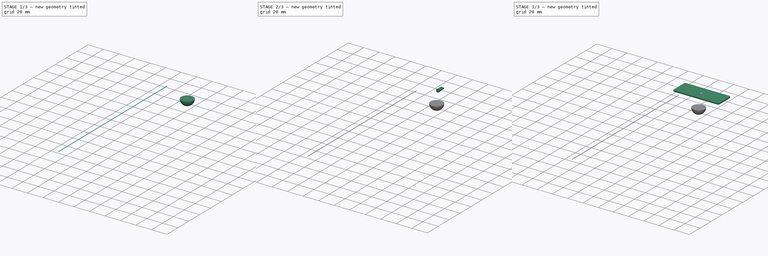
[diagram: build sequence overview — one tinted view per stage of 3, left to right]
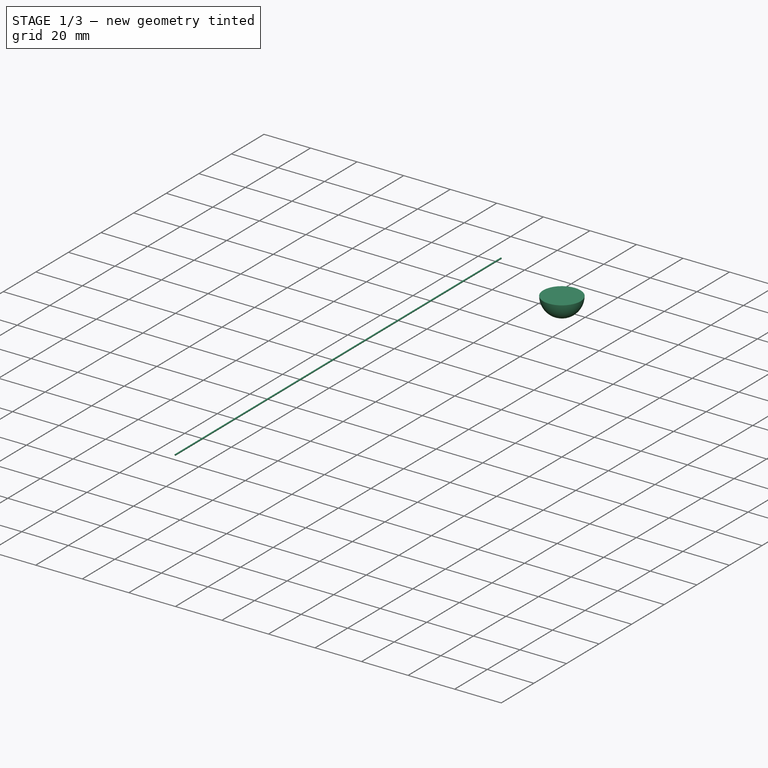
[diagram: stage 1 of 3 — iso view after this stage's code; geometry added in this stage tinted green]
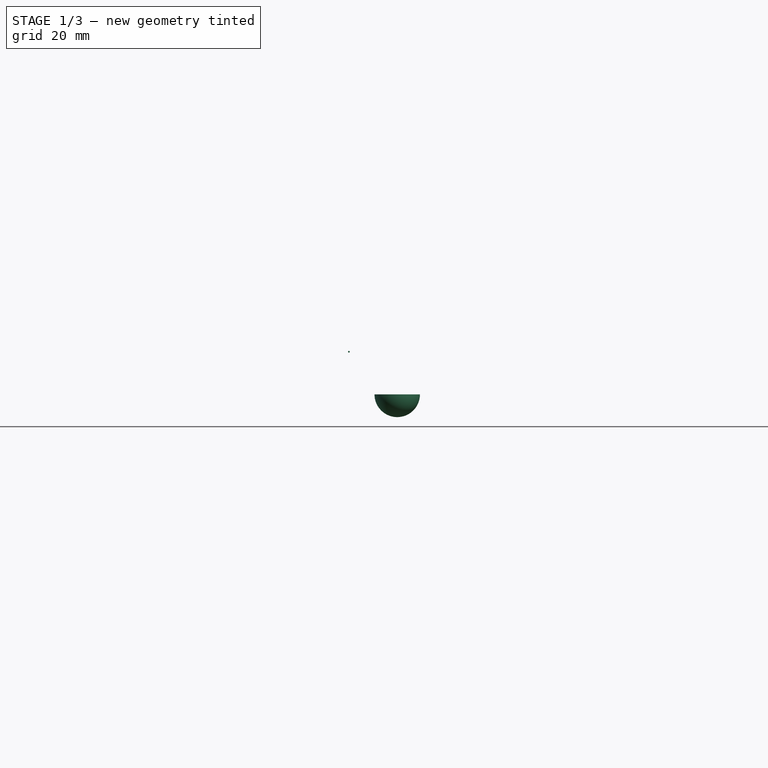
[diagram: stage 1 of 3 — front view after this stage's code; geometry added in this stage tinted green]
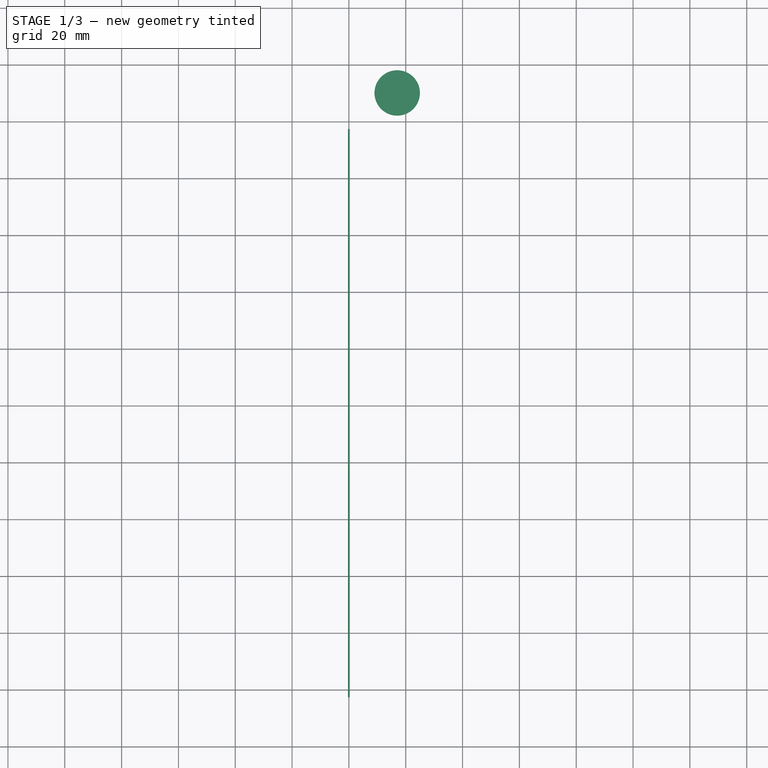
[diagram: stage 1 of 3 — top view after this stage's code; geometry added in this stage tinted green]
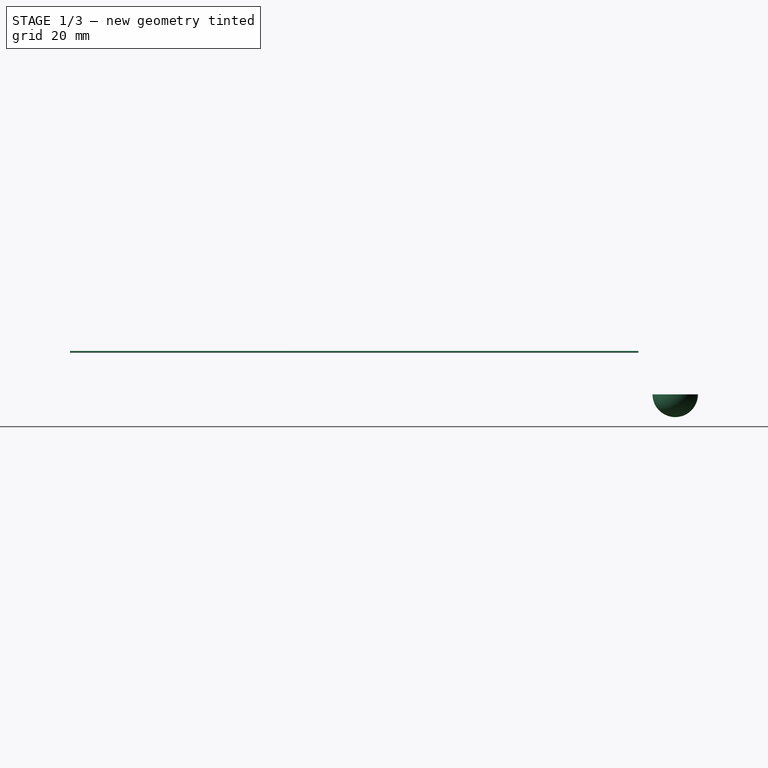
[diagram: stage 1 of 3 — right view after this stage's code; geometry added in this stage tinted green]
FCSTD DOCUMENT  (FreeCAD 0.18.4R)
Label: model
License: All rights reserved
LicenseURL: http://en.wikipedia.org/wiki/All_rights_reserved
objects: Part::Feature×8, Sketcher::SketchObject×5, PartDesign::Pocket×2, PartDesign::Body×2, PartDesign::Pad×2, PartDesign::FeatureBase×1, Part::Sphere×1, Image::ImagePlane×1, Part::Cylinder×1
note: 26 computed .brp shape members not serialized (recipe doc carries the construction recipe); baked Part::Feature solids carry a one-line shape summary decoded from their .brp

FEATURE [PartDesign::Body] Body001
  Group = -> [Sketch002,Pad,Sketch003,Pad001,Sketch004,Pocket001]
  Origin = -> Origin001
  Placement = pos=(0,48,6) rot=(0,0,1;0rad)
  Tip = -> Pocket001
FEATURE [Part::Sphere] Sphere
  Angle1 = -90
  Angle2 = 0
  Angle3 = 360
  AttacherType = Attacher::AttachEngine3D
  Placement = pos=(17,-30,0) rot=(0,0,1;0rad)
  Radius = 8
FEATURE [Image::ImagePlane] ImagePlane
  Placement = pos=(-3.3e-15,15,2) rot=(0.707107,0.707107,0;3.14159rad)
  XSize = 47
  YSize = 23
FEATURE [Part::Cylinder] Cylinder
  Angle = 360
  AttacherType = Attacher::AttachEngine3D
  Height = 200
  Placement = pos=(0,-43,15) rot=(1,0,0;1.5708rad)
  Radius = 0.3
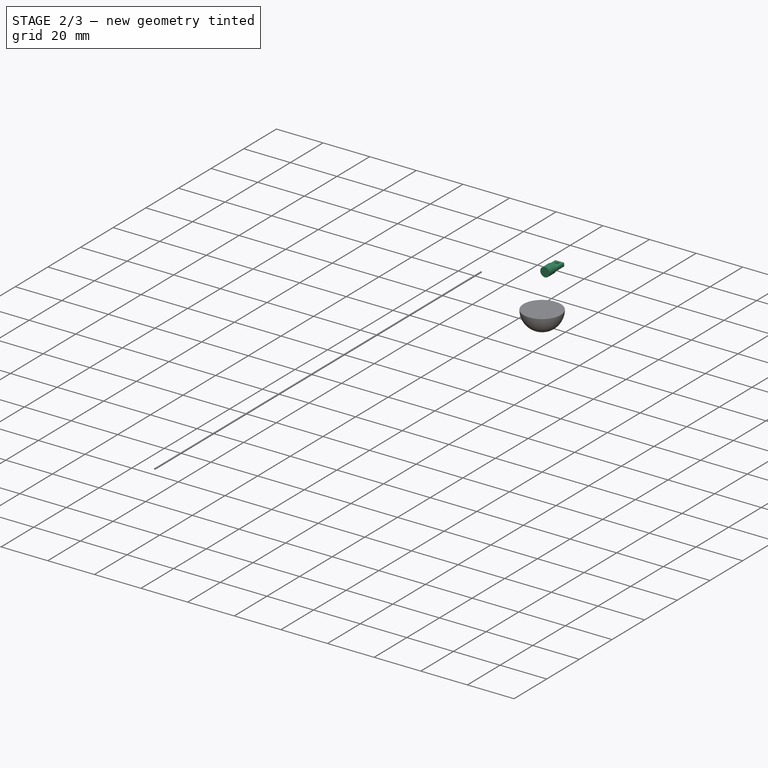
[diagram: stage 2 of 3 — iso view after this stage's code; geometry added in this stage tinted green]
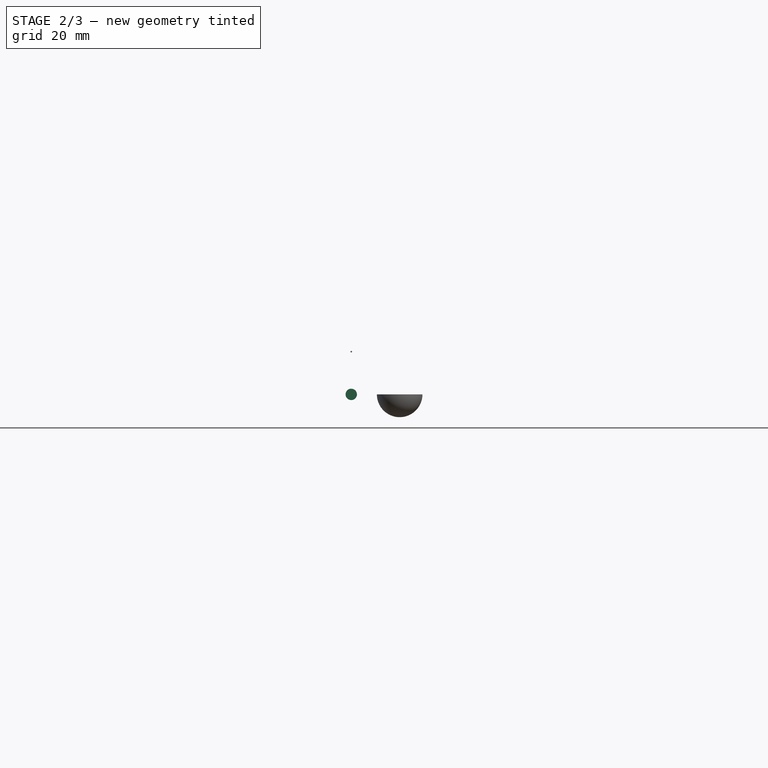
[diagram: stage 2 of 3 — front view after this stage's code; geometry added in this stage tinted green]
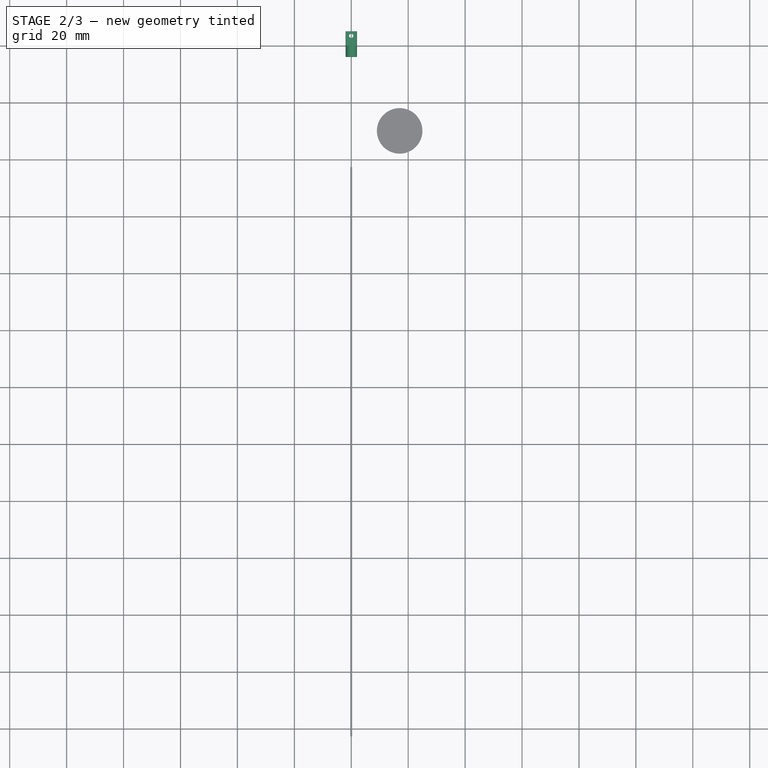
[diagram: stage 2 of 3 — top view after this stage's code; geometry added in this stage tinted green]
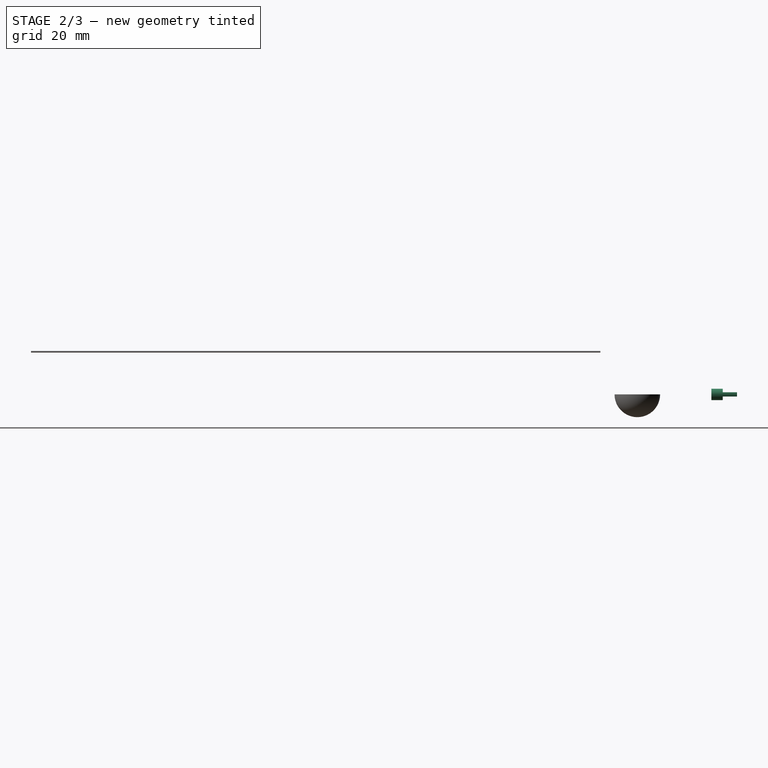
[diagram: stage 2 of 3 — right view after this stage's code; geometry added in this stage tinted green]
FEATURE [Sketcher::SketchObject] Sketch001
  MapMode = 5
  Placement = pos=(0,0,-0.85) rot=(1,0,0;3.14159rad)
  Support = -> [Pocket]
FEATURE [PartDesign::Body] Body
  BaseFeature = -> _593L002
  Group = -> [BaseFeature,Sketch,Pocket,Sketch001]
  Origin = -> Origin
  Placement = pos=(0,43,12) rot=(1,0,0;1.5708rad)
  Tip = -> Pocket
FEATURE [Sketcher::SketchObject] Sketch002
  MapMode = 5
  Placement = pos=(0,0,0) rot=(1,0,0;1.5708rad)
  Support = -> [XZ_Plane001]
  sketch-geometry (1):
    g0: Circle CenterX=0 CenterY=0 CenterZ=0 NormalX=0 NormalY=0 NormalZ=1 AngleXU=0 Radius=2
  constraints (2):
    c: Coincident(g0,g-1)
    c: Diameter(g0) = 4
FEATURE [PartDesign::Pad] Pad
  Length = 4
  Length2 = 100
  Placement = pos=(0,0,0) rot=(1,0,0;1.5708rad)
  Profile = -> Sketch002
  Refine = true
  Type = 0
FEATURE [Sketcher::SketchObject] Sketch003
  ExternalGeometry = -> [Pad]
  MapMode = 5
  Placement = pos=(0,0,0) rot=(-1,0,0;1.5708rad)
  Support = -> [Pad]
  sketch-geometry (4):
    g0: LineSegment StartX=-1.85405 StartY=0.75 StartZ=0 EndX=1.85405 EndY=0.75 EndZ=0
    g1: LineSegment StartX=1.85405 StartY=-0.75 StartZ=0 EndX=-1.85405 EndY=-0.75 EndZ=0
    g2: ArcOfCircle CenterX=0 CenterY=0 CenterZ=0 NormalX=0 NormalY=0 NormalZ=1 AngleXU=0 Radius=2 StartAngle=5.89879 EndAngle=6.66758
    g3: ArcOfCircle CenterX=0 CenterY=0 CenterZ=0 NormalX=0 NormalY=0 NormalZ=1 AngleXU=0 Radius=2 StartAngle=2.7572 EndAngle=3.52599
  constraints (11):
    c: Horizontal(g0)
    c: Horizontal(g1)
    c: PointOnObject(g0,g-3)
    c: Symmetric(g1,g0,g-1)
    c: DistanceY(g1,g0) = 1.5
    c: Coincident(g2,g-1)
    c: Coincident(g2,g0)
    c: Coincident(g2,g1)
    c: Coincident(g3,g2)
    c: Coincident(g3,g0)
    c: Coincident(g3,g1)
FEATURE [PartDesign::Pad] Pad001
  BaseFeature = -> Pad
  Length = 5
  Length2 = 100
  Placement = pos=(0,0,0) rot=(1,0,0;1.5708rad)
  Profile = -> Sketch003
  Refine = true
  Type = 0
FEATURE [Sketcher::SketchObject] Sketch004
  ExternalGeometry = -> [Pad001]
  MapMode = 5
  Placement = pos=(0,-9e-16,-0.75) rot=(1,0,0;3.14159rad)
  Support = -> [Pad001]
  sketch-geometry (1):
    g0: Circle CenterX=0 CenterY=-3.4 CenterZ=0 NormalX=0 NormalY=0 NormalZ=1 AngleXU=0 Radius=0.75
  constraints (3):
    c: PointOnObject(g0,g-2)
    c: Diameter(g0) = 1.5
    c: DistanceY(g-3,g0) = 1.6
FEATURE [PartDesign::Pocket] Pocket001
  BaseFeature = -> Pad001
  Length = 5
  Length2 = 100
  Placement = pos=(0,0,0) rot=(1,0,0;1.5708rad)
  Profile = -> Sketch004
  Refine = true
  Type = 0
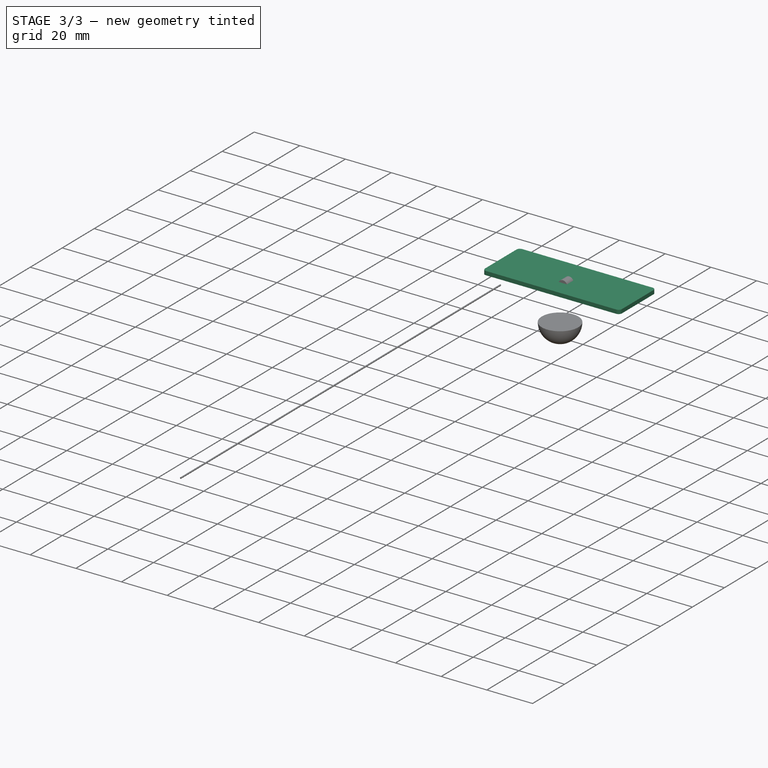
[diagram: stage 3 of 3 — iso view after this stage's code; geometry added in this stage tinted green]
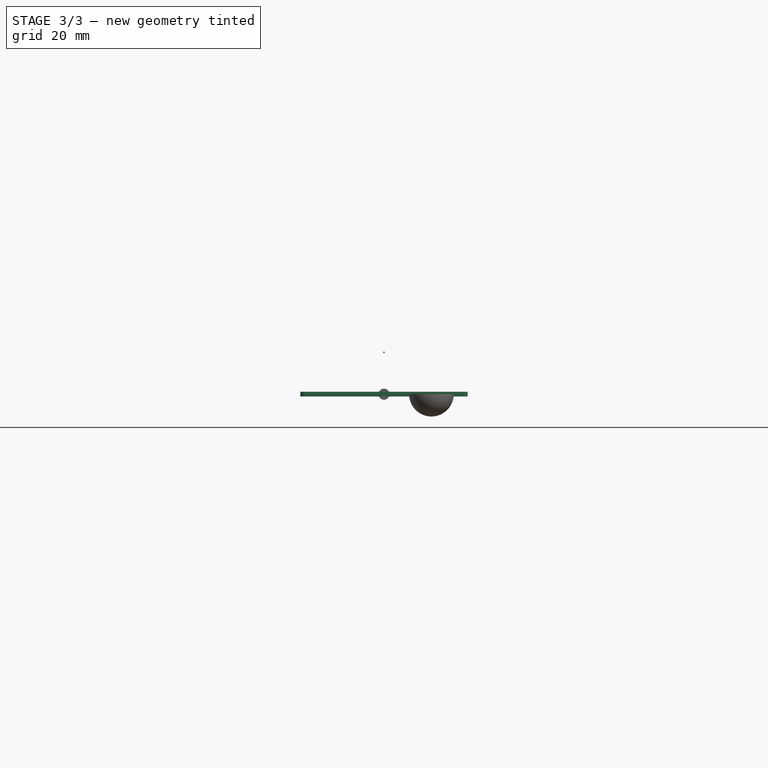
[diagram: stage 3 of 3 — front view after this stage's code; geometry added in this stage tinted green]
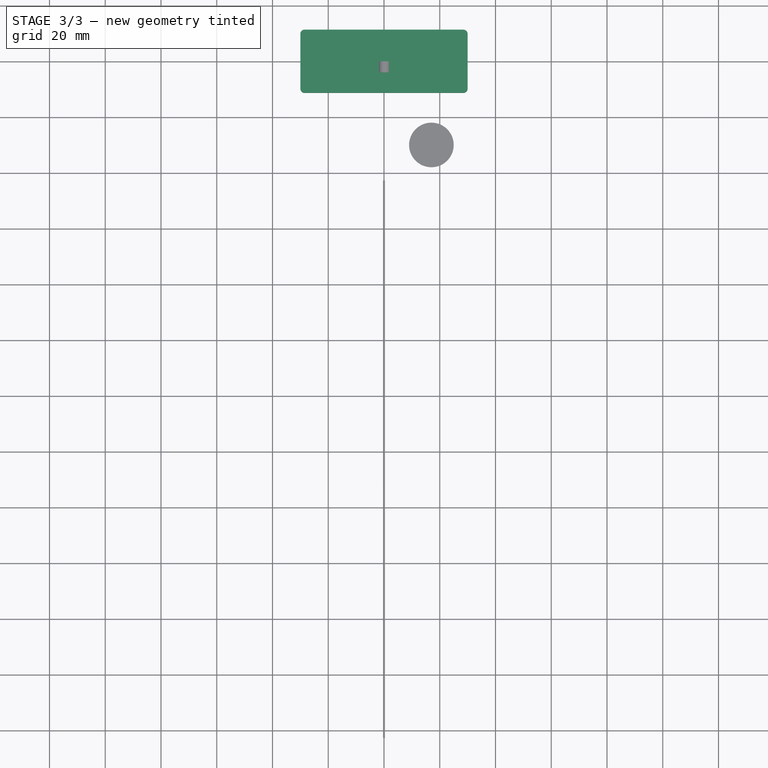
[diagram: stage 3 of 3 — top view after this stage's code; geometry added in this stage tinted green]
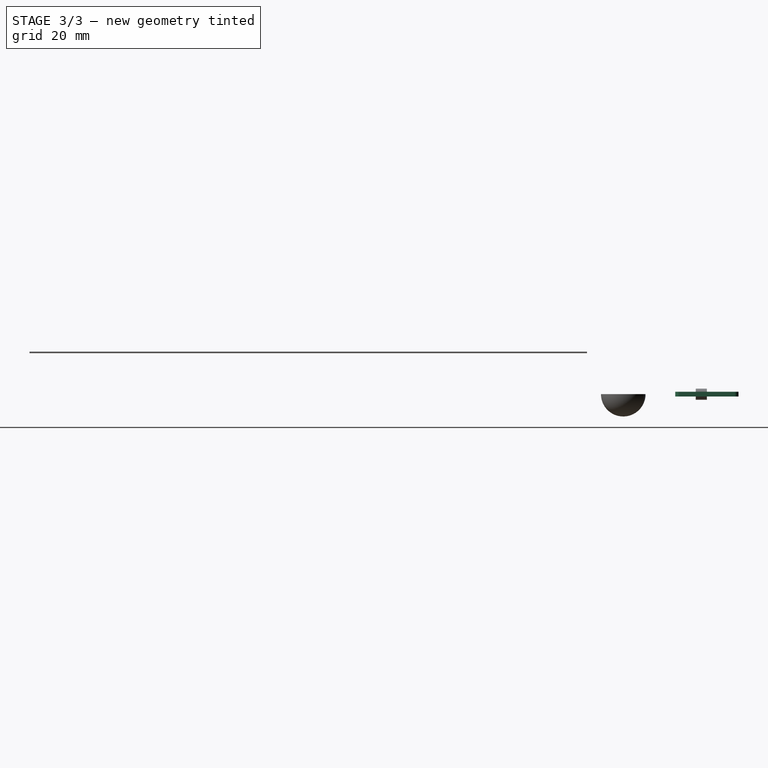
[diagram: stage 3 of 3 — right view after this stage's code; geometry added in this stage tinted green]
FEATURE [Part::Feature] _593L
  shape: bbox 66.21 x 92.24 x 14.92 mm, 152 faces (baked)
FEATURE [Part::Feature] _593L001
  Placement = pos=(0,0,28) rot=(0,1,0;3.14159rad)
  shape: bbox 66.25 x 92.25 x 229.2 mm, 312 faces (baked)
FEATURE [Part::Feature] _593L002
  Placement = pos=(0,43.0362,14) rot=(0,0.707107,-0.707107;3.14159rad)
  shape: bbox 60 x 1.7 x 22.7 mm, 10 faces (baked)
FEATURE [Part::Feature] _593L003
  Placement = pos=(0,-43.0362,14) rot=(0,0.707107,-0.707107;3.14159rad)
  shape: bbox 60 x 1.7 x 22.7 mm, 10 faces (baked)
FEATURE [Part::Feature] _593L007
  Placement = pos=(-25,-20.4362,2.53722) rot=(-1,0,0;1.5708rad)
  shape: bbox 5.105 x 5.105 x 18.81 mm, 28 faces (baked)
FEATURE [Part::Feature] _593L008
  Placement = pos=(-25,20.4362,2.53722) rot=(-1,0,0;1.5708rad)
  shape: bbox 5.105 x 5.105 x 18.81 mm, 28 faces (baked)
FEATURE [Part::Feature] _593L009
  Placement = pos=(25,20.4362,2.53722) rot=(-1,0,0;1.5708rad)
  shape: bbox 5.105 x 5.105 x 18.81 mm, 28 faces (baked)
FEATURE [Part::Feature] _593L010
  Placement = pos=(25,-20.4362,2.53722) rot=(-1,0,0;1.5708rad)
  shape: bbox 5.105 x 5.105 x 18.81 mm, 28 faces (baked)
FEATURE [PartDesign::FeatureBase] BaseFeature
  BaseFeature = -> _593L002
FEATURE [Sketcher::SketchObject] Sketch
  MapMode = 5
  Placement = pos=(0,0,-0.85) rot=(1,0,0;3.14159rad)
  Support = -> [BaseFeature]
  sketch-geometry (6):
    g0: LineSegment StartX=-4 StartY=0 StartZ=0 EndX=4 EndY=0 EndZ=0
    g1: LineSegment StartX=4 StartY=0 StartZ=0 EndX=4 EndY=-1.5 EndZ=0
    g2: LineSegment StartX=2.5 StartY=-3 StartZ=0 EndX=-2.5 EndY=-3 EndZ=0
    g3: LineSegment StartX=-4 StartY=-1.5 StartZ=0 EndX=-4 EndY=0 EndZ=0
    g4: ArcOfCircle CenterX=-2.5 CenterY=-1.5 CenterZ=0 NormalX=0 NormalY=0 NormalZ=1 AngleXU=0 Radius=1.5 StartAngle=3.14159 EndAngle=4.71239
    g5: ArcOfCircle CenterX=2.5 CenterY=-1.5 CenterZ=0 NormalX=0 NormalY=0 NormalZ=1 AngleXU=0 Radius=1.5 StartAngle=4.71239 EndAngle=6.28319
  constraints (15):
    c: Coincident(g0,g1)
    c: Coincident(g3,g0)
    c: Horizontal(g2)
    c: Vertical(g3)
    c: Symmetric(g0,g0,g-2)
    c: DistanceX(g0,g0) = 8
    c: Tangent(g2,g4) = 1.5708
    c: Tangent(g3,g4) = 1.5708
    c: Tangent(g1,g5) = 1.5708
    c: Tangent(g2,g5) = 1.5708
    c: Equal(g4,g5)
    c: Radius(g5) = 1.5
    c: Vertical(g1)
    c: DistanceY(g2,g0) = 3
    c: PointOnObject(g0,g-1)
FEATURE [PartDesign::Pocket] Pocket
  BaseFeature = -> BaseFeature
  Length = 1
  Length2 = 100
  Profile = -> Sketch
  Refine = true
  Type = 0
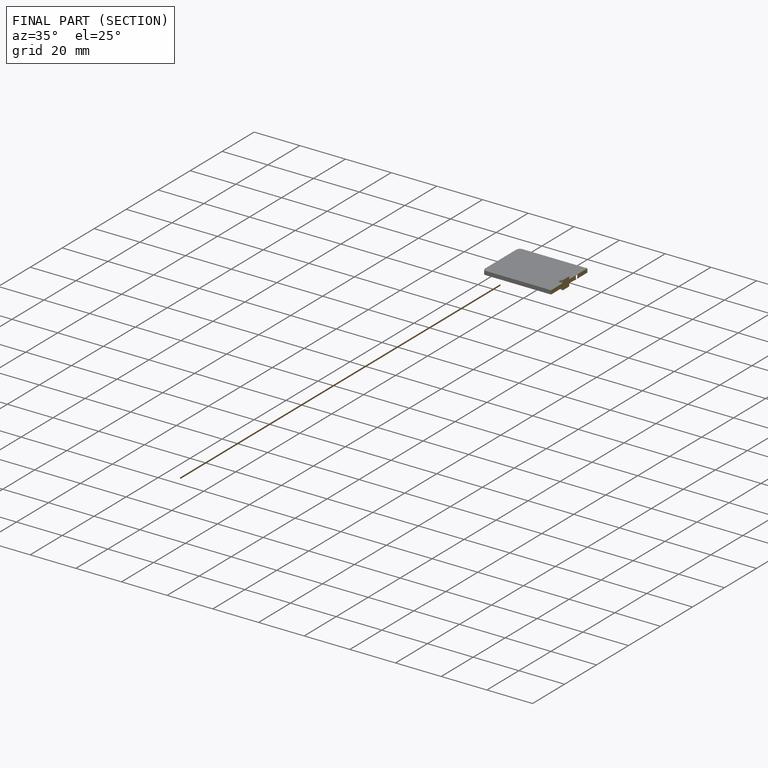
[diagram: finished part — half-section view (interior)]
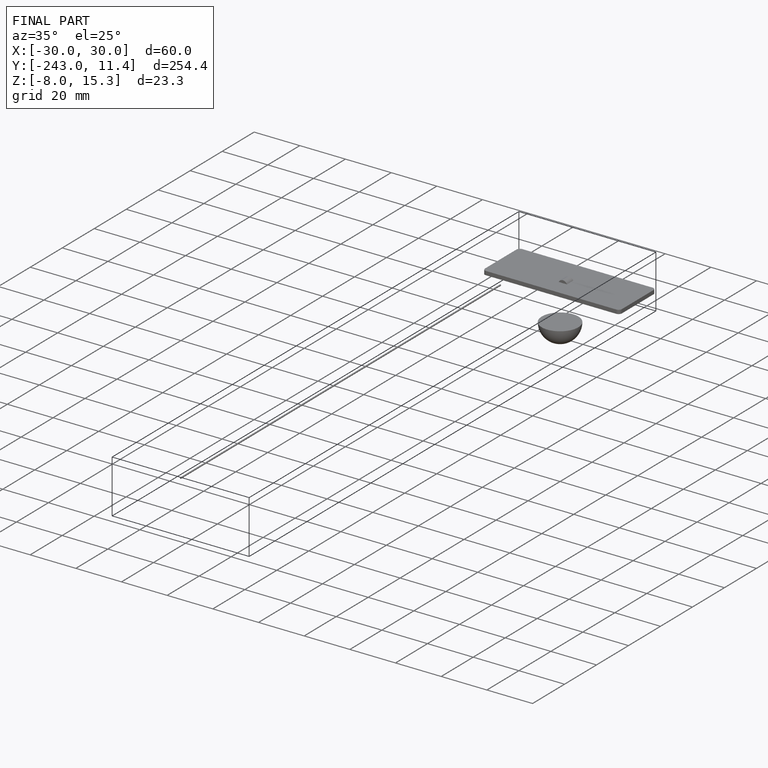
[diagram: finished part — iso view with bounding-box wireframe]
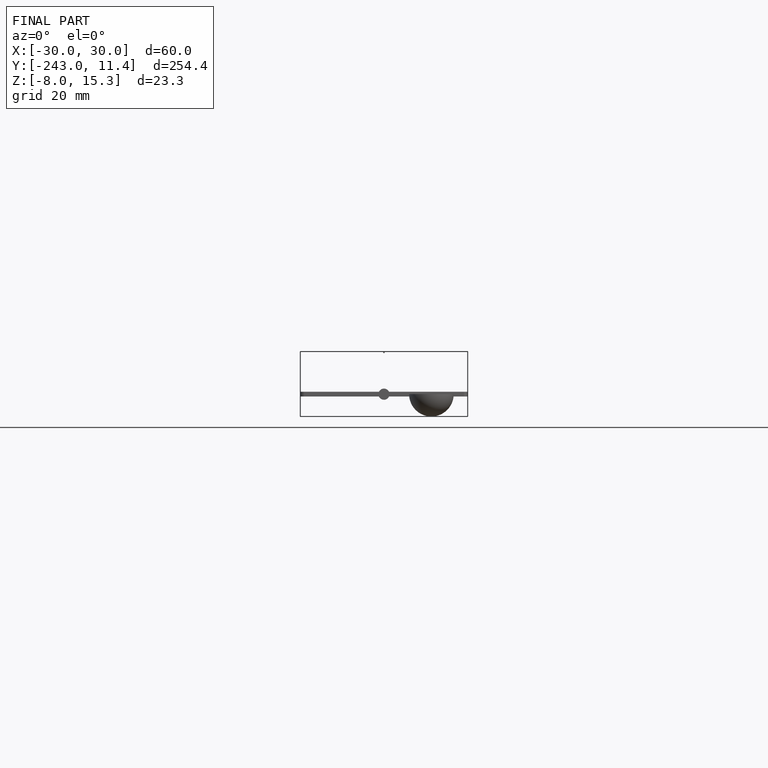
[diagram: finished part — front view with bounding-box wireframe]
